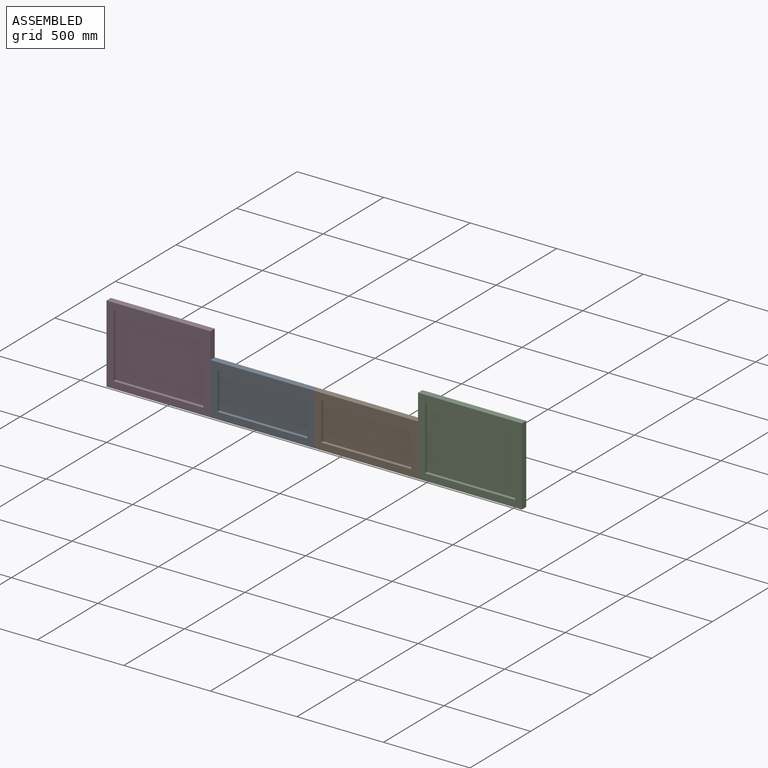
[diagram: assembled view]
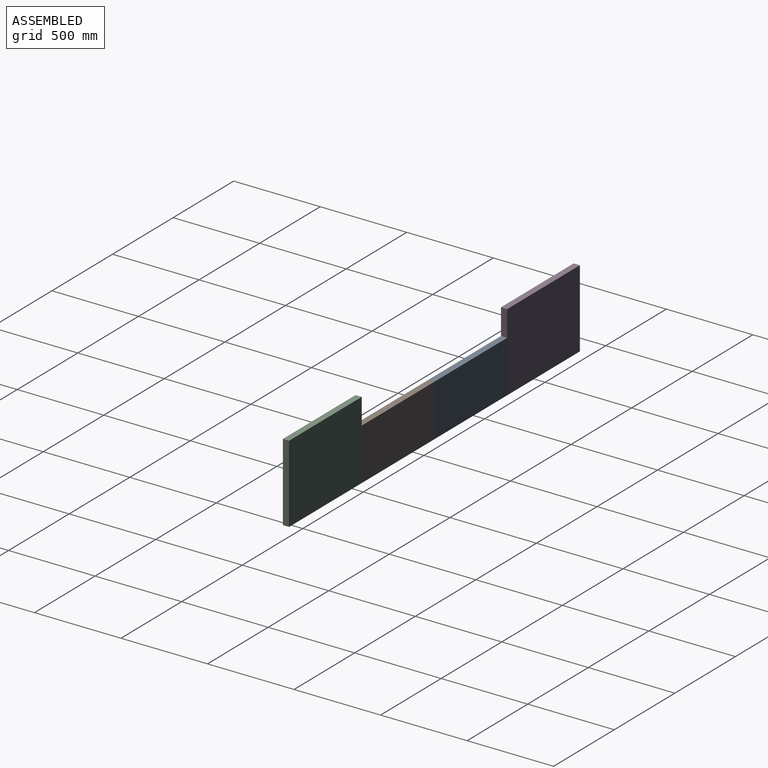
[diagram: assembled view, second angle]
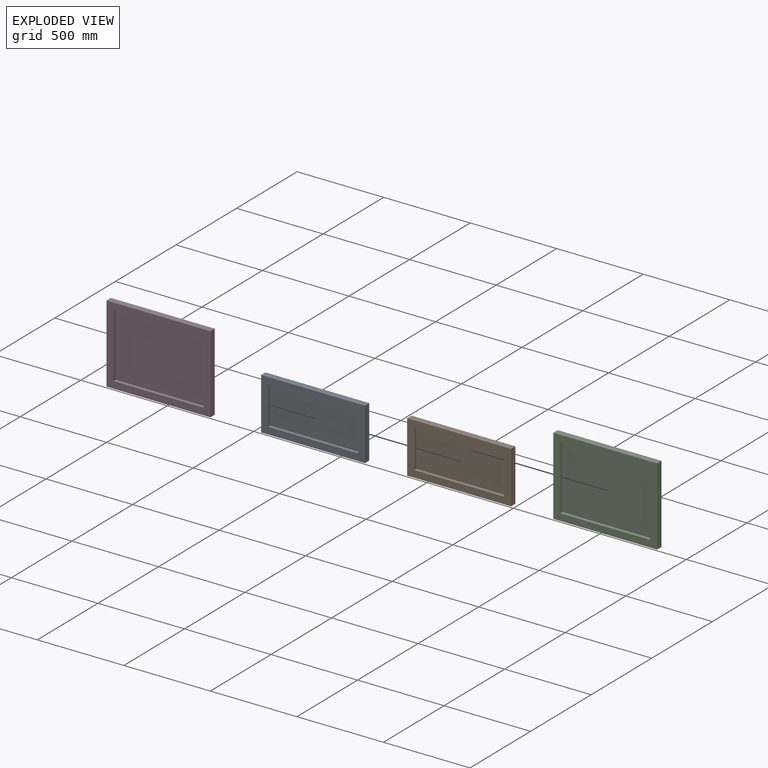
[diagram: exploded view]
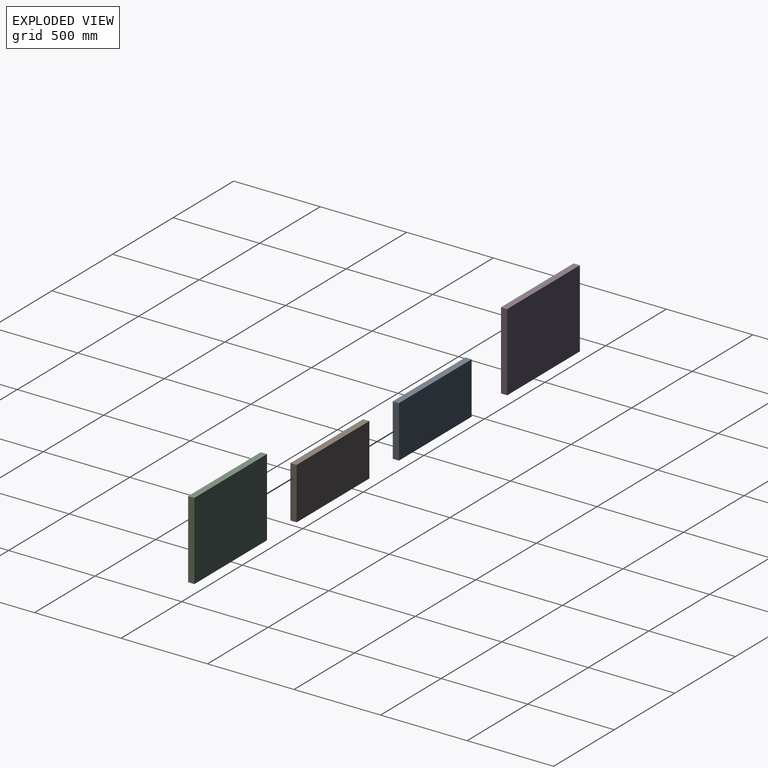
[diagram: exploded view, second angle]
ASSEMBLY  parts=4 mates=9
PART A: 11 faces, bbox 600x36x300 mm
  f0: plane 600x300mm, normal (0,-1,0), area 65600mm2, adj f1,f2,f3,f4,f6,f7,f8,f9
  f1: plane 600x36mm, normal (0,0,1), area 21600mm2, adj f0,f2,f4,f5
  f2: plane 300x36mm, normal (-1,0,0), area 10800mm2, adj f0,f1,f3,f5
  f3: plane 600x36mm, normal (0,0,-1), area 21600mm2, adj f0,f2,f4,f5
  f4: plane 300x36mm, normal (1,0,0), area 10800mm2, adj f0,f1,f3,f5
  f5: plane 600x300mm, normal (0,1,0), area 180000mm2, adj f1,f2,f3,f4
  f6: plane 520x18mm, normal (0,0,-1), area 9360mm2, adj f0,f7,f9,f10
  f7: plane 220x18mm, normal (1,0,0), area 3960mm2, adj f0,f6,f8,f10
  f8: plane 520x18mm, normal (0,0,1), area 9360mm2, adj f0,f7,f9,f10
  f9: plane 220x18mm, normal (-1,0,0), area 3960mm2, adj f0,f6,f8,f10
  f10: plane 520x220mm, normal (0,-1,0), area 114400mm2, adj f6,f7,f8,f9
PART B: same geometry as A
PART C: 11 faces, bbox 600x36x450 mm
  f0: plane 600x450mm, normal (0,-1,0), area 77600mm2, adj f1,f2,f3,f4,f6,f7,f8,f9
  f1: plane 600x36mm, normal (0,0,1), area 21600mm2, adj f0,f2,f4,f5
  f2: plane 450x36mm, normal (-1,0,0), area 16200mm2, adj f0,f1,f3,f5
  f3: plane 600x36mm, normal (0,0,-1), area 21600mm2, adj f0,f2,f4,f5
  f4: plane 450x36mm, normal (1,0,0), area 16200mm2, adj f0,f1,f3,f5
  f5: plane 600x450mm, normal (0,1,0), area 270000mm2, adj f1,f2,f3,f4
  f6: plane 520x18mm, normal (0,0,-1), area 9360mm2, adj f0,f7,f9,f10
  f7: plane 370x18mm, normal (1,0,0), area 6660mm2, adj f0,f6,f8,f10
  f8: plane 520x18mm, normal (0,0,1), area 9360mm2, adj f0,f7,f9,f10
  f9: plane 370x18mm, normal (-1,0,0), area 6660mm2, adj f0,f6,f8,f10
  f10: plane 520x370mm, normal (0,-1,0), area 192400mm2, adj f6,f7,f8,f9
PART D: same geometry as C
PLACE A t=(-811.57,-18.04,-1112.41)mm
PLACE B t=(-211.57,-18.04,-1112.41)mm
PLACE C t=(325.71,-18.04,-1041.19)mm
PLACE D t=(-1474.29,-18.04,-1041.19)mm
MATE planar D.f3 <-> A.f3  axis (0,0,-1) through (-1512.81,-36.04,-1272.51)mm
MATE planar B.f1 <-> A.f1  axis (0,0,1) through (-612.81,-18.04,-972.51)mm
MATE planar C.f2 <-> B.f4  axis (-1,0,0) through (-12.81,-36.04,-1047.51)mm
MATE planar D.f4 <-> A.f2  axis (1,0,0) through (-1212.81,-36.04,-1047.51)mm
MATE planar D.f10 <-> A.f10  axis (0,-1,0) through (-1512.81,-36.04,-1047.51)mm
MATE planar B.f10 <-> A.f10  axis (0,-1,0) through (-312.81,-36.04,-1122.51)mm
MATE planar B.f3 <-> C.f3  axis (0,0,-1) through (-312.81,-36.04,-1272.51)mm
MATE planar C.f10 <-> B.f10  axis (0,-1,0) through (287.19,-36.04,-1047.51)mm
MATE planar A.f4 <-> B.f2  axis (1,0,0) through (-612.81,-36.04,-1122.51)mm
